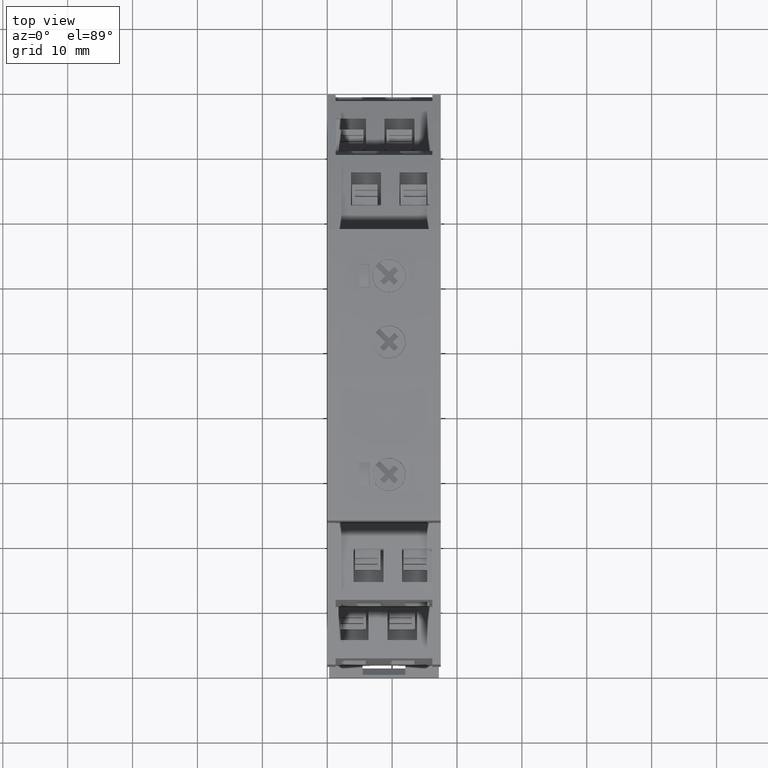
[diagram: clean part render]
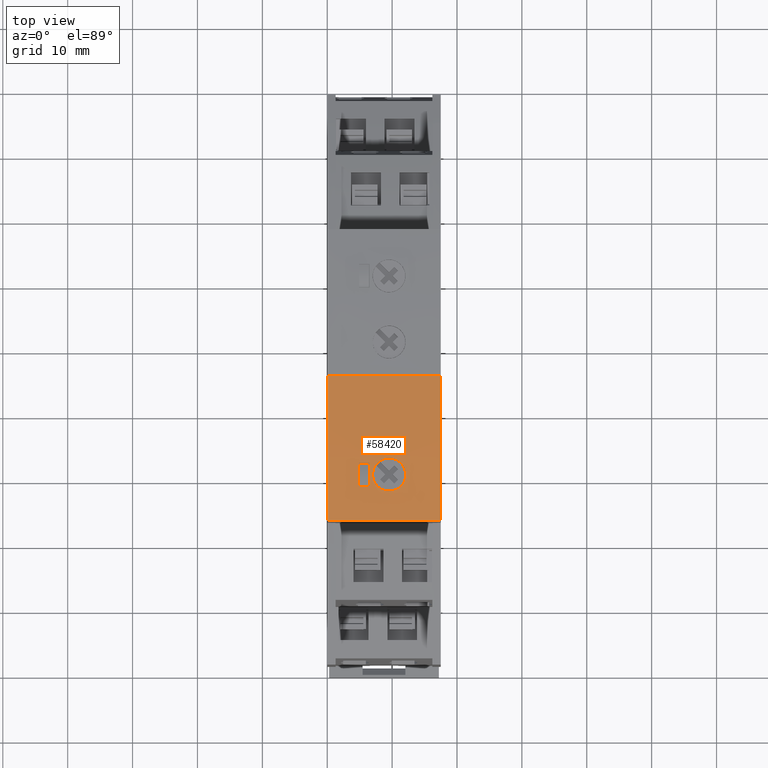
[diagram: same view with one face highlighted and labeled with its STEP entity id]
A machine part, top view. The second image highlights one B-rep face of the part: STEP entity #58420.
In plain terms, the highlighted face is a SurfaceOfExtrusion surface.
Its self-contained STEP definition (entity closure, byte-faithful):
#51370=CARTESIAN_POINT('',(-39.875644720519,59.9043663447041,0.));
#51380=VERTEX_POINT('',#51370);
#51410=CARTESIAN_POINT('',(-39.875644720519,59.9043663447041,
-3.5527136788005E-15));
#51420=DIRECTION('',(1.35525271560688E-20,-2.95822839457879E-31,1.));
#51430=VECTOR('',#51420,1.);
#51440=LINE('',#51410,#51430);
#51450=CARTESIAN_POINT('',(-39.875644720519,59.9043663447041,17.5));
#51460=VERTEX_POINT('',#51450);
#51470=EDGE_CURVE('',#51380,#51460,#51440,.T.);
#52220=CARTESIAN_POINT('',(-17.4845967167556,61.1580974394406,0.));
#52230=VERTEX_POINT('',#52220);
#52260=CARTESIAN_POINT('',(154.280844406757,61.158091567358,0.));
#52270=CARTESIAN_POINT('',(144.771787865585,61.1580918924406,0.));
#52280=CARTESIAN_POINT('',(135.262731324412,61.1580922175233,0.));
#52290=CARTESIAN_POINT('',(116.250572891361,61.158092867485,0.));
#52300=CARTESIAN_POINT('',(106.747470999481,61.1580931923641,0.));
#52310=CARTESIAN_POINT('',(59.0013804994831,61.1580948246423,0.));
#52320=CARTESIAN_POINT('',(20.7583918913638,61.1580961320414,0.));
#52330=CARTESIAN_POINT('',(-24.5764013397725,61.1580976818854,0.));
#52340=CARTESIAN_POINT('',(-31.6631882343078,60.7809522745125,0.));
#52350=CARTESIAN_POINT('',(-76.7419121579807,55.9693133706651,0.));
#52360=CARTESIAN_POINT('',(-114.768891233554,51.9103676865408,0.));
#52370=CARTESIAN_POINT('',(-162.245295418095,46.8428038003955,0.));
#52380=CARTESIAN_POINT('',(-171.694720527062,45.8341855983744,0.));
#52390=CARTESIAN_POINT('',(-190.599491760387,43.8163171935673,0.));
#52400=CARTESIAN_POINT('',(-200.054837884744,42.8070669907813,0.));
#52410=CARTESIAN_POINT('',(-209.510184009101,41.7978167879953,0.));
#52420=B_SPLINE_CURVE_WITH_KNOTS('',3,(#52260,#52270,#52280,#52290,
#52300,#52310,#52320,#52330,#52340,#52350,#52360,#52370,#52380,#52390,
#52400,#52410),.UNSPECIFIED.,.F.,.F.,(4,2,2,2,2,2,2,4),(
-8.07342419662033,-6.73257274249117,-5.3925609405535,0.,1.,
6.39256310242424,7.73257544157093,9.07342743324572),.UNSPECIFIED.);
#52430=EDGE_CURVE('',#52230,#51380,#52420,.T.);
#53190=CARTESIAN_POINT('',(166.810168798671,61.1580911390225,
-3.5527136788005E-15));
#53200=CARTESIAN_POINT('',(162.6337273347,61.158091281801,
-3.5527136788005E-15));
#53210=CARTESIAN_POINT('',(158.457285870729,61.1580914245795,
-3.5527136788005E-15));
#53220=CARTESIAN_POINT('',(144.771787865585,61.1580918924406,
-3.5527136788005E-15));
#53230=CARTESIAN_POINT('',(135.262731324412,61.1580922175233,
-3.5527136788005E-15));
#53240=CARTESIAN_POINT('',(116.250572891361,61.158092867485,
-3.5527136788005E-15));
#53250=CARTESIAN_POINT('',(106.747470999481,61.1580931923641,
-3.5527136788005E-15));
#53260=CARTESIAN_POINT('',(59.001380499483,61.1580948246423,
-3.5527136788005E-15));
#53270=CARTESIAN_POINT('',(20.7583918913639,61.1580961320414,
-3.5527136788005E-15));
#53280=CARTESIAN_POINT('',(-24.5764013397725,61.1580976818854,
-3.5527136788005E-15));
#53290=CARTESIAN_POINT('',(-31.6631882343078,60.7809522745125,
-3.5527136788005E-15));
#53300=CARTESIAN_POINT('',(-76.7419121579807,55.9693133706651,
-3.5527136788005E-15));
#53310=CARTESIAN_POINT('',(-114.768891233554,51.9103676865408,
-3.5527136788005E-15));
#53320=CARTESIAN_POINT('',(-162.245295418094,46.8428038003955,
-3.5527136788005E-15));
#53330=CARTESIAN_POINT('',(-171.694720527062,45.8341855983744,
-3.5527136788005E-15));
#53340=CARTESIAN_POINT('',(-190.599491760387,43.8163171935673,
-3.5527136788005E-15));
#53350=CARTESIAN_POINT('',(-200.054837884744,42.8070669907813,
-3.5527136788005E-15));
#53360=CARTESIAN_POINT('',(-213.663035497467,41.3545473241756,
-3.5527136788005E-15));
#53370=CARTESIAN_POINT('',(-217.815886985833,40.9112778603559,
-3.5527136788005E-15));
#53380=CARTESIAN_POINT('',(-221.968738474199,40.4680083965362,
-3.5527136788005E-15));
#53390=B_SPLINE_CURVE_WITH_KNOTS('',3,(#53190,#53200,#53210,#53220,
#53230,#53240,#53250,#53260,#53270,#53280,#53290,#53300,#53310,#53320,
#53330,#53340,#53350,#53360,#53370,#53380),.UNSPECIFIED.,.F.,.F.,(4,2,2,
2,2,2,2,2,2,4),(-8.66233515595729,-8.07342419662033,-6.73257274249117,
-5.3925609405535,0.,1.,6.39256310242424,7.73257544157093,
9.07342743324572,9.66233862867633),.UNSPECIFIED.);
#53400=DIRECTION('',(1.35525271560688E-20,-2.95822839457879E-31,1.));
#53410=VECTOR('',#53400,1.);
#53420=SURFACE_OF_LINEAR_EXTRUSION('',#53390,#53410);
#53430=CARTESIAN_POINT('',(-30.9844182525278,59.953195118063,
6.50042179353598));
#53440=DIRECTION('',(0.999999999536252,-5.02043146649139E-18,
-3.04548102665637E-5));
#53450=DIRECTION('',(5.02021973198065E-18,1.,-6.95249246343215E-18));
#53460=AXIS2_PLACEMENT_3D('',#53430,#53440,#53450);
#53470=PLANE('',#53460);
#53480=CARTESIAN_POINT('',(-30.9844182525278,60.7020337093781,
6.50042179353598));
#53490=CARTESIAN_POINT('',(-30.9844223885881,60.702033429602,
6.36461203995883));
#53500=CARTESIAN_POINT('',(-30.9844265246483,60.7020331498258,
6.22880228638168));
#53510=CARTESIAN_POINT('',(-30.9844306607086,60.7020328700495,
6.09299253280454));
#53520=CARTESIAN_POINT('',(-30.9844347967689,60.7020325902732,
5.9571827792274));
#53530=CARTESIAN_POINT('',(-30.9844389328292,60.7020323104967,
5.82137302565025));
#53540=CARTESIAN_POINT('',(-30.9844430688895,60.7020320307202,
5.68556327207311));
#53550=CARTESIAN_POINT('',(-30.9844472049497,60.7020317509436,
5.54975351849596));
#53560=CARTESIAN_POINT('',(-30.98445134101,60.7020314711669,
5.41394376491881));
#53570=CARTESIAN_POINT('',(-30.9844554770703,60.7020311913901,
5.27813401134167));
#53580=CARTESIAN_POINT('',(-30.9844575451004,60.7020310515016,
5.2102291345531));
#53590=CARTESIAN_POINT('',(-30.9844596131306,60.7020309116132,
5.14232425776453));
#53600=CARTESIAN_POINT('',(-30.9844616811607,60.7020307717247,
5.07441938097595));
#53610=CARTESIAN_POINT('',(-30.9844637491909,60.7020306318362,
5.00651450418738));
#53620=CARTESIAN_POINT('',(-30.984465817221,60.7020304919477,
4.93860962739881));
#53630=CARTESIAN_POINT('',(-30.9844678852511,60.7020303520592,
4.87070475061024));
#53640=B_SPLINE_CURVE_WITH_KNOTS('',3,(#53480,#53490,#53500,#53510,
#53520,#53530,#53540,#53550,#53560,#53570,#53580,#53590,#53600,#53610,
#53620,#53630),.UNSPECIFIED.,.F.,.F.,(4,3,3,3,3,4),(0.,0.407429260921244
,0.814858521842488,1.22228778276373,1.42600241322436,1.62971704368498),
.UNSPECIFIED.);
#53650=SURFACE_CURVE('',#53640,(#53470,#53420),.CURVE_3D.);
#53660=CARTESIAN_POINT('',(-30.9844182525278,60.7020337093781,
6.50042179353598));
#53670=VERTEX_POINT('',#53660);
#53680=CARTESIAN_POINT('',(-30.9844678852511,60.7020303520592,
4.87070475061024));
#53690=VERTEX_POINT('',#53680);
#53700=EDGE_CURVE('',#53670,#53690,#53650,.T.);
#53710=ORIENTED_EDGE('',*,*,#53700,.F.);
#53720=CARTESIAN_POINT('',(125.75367478324,61.1580925426059,
4.86593132021152));
#53730=CARTESIAN_POINT('',(116.250572891361,61.158092867485,
4.86622073537671));
#53740=CARTESIAN_POINT('',(106.747470999481,61.1580931923641,
4.86651015054191));
#53750=CARTESIAN_POINT('',(59.0013804994831,61.1580948246423,
4.86796424866973));
#53760=CARTESIAN_POINT('',(20.7583918913638,61.1580961320414,
4.86912893163236));
#53770=CARTESIAN_POINT('',(-24.5764013397726,61.1580976818854,
4.87050959415933));
#53780=CARTESIAN_POINT('',(-31.6631882343079,60.7809522745125,
4.8707254209097));
#53790=CARTESIAN_POINT('',(-76.7419121579808,55.9693133706651,
4.87209828489449));
#53800=CARTESIAN_POINT('',(-114.768891233554,51.9103676865408,
4.87325638932779));
#53810=CARTESIAN_POINT('',(-162.245295418095,46.8428038003955,
4.87470227421003));
#53820=CARTESIAN_POINT('',(-171.694720527062,45.8341855983744,
4.87499005465899));
#53830=CARTESIAN_POINT('',(-181.14414563603,44.8255673963532,
4.87527783510794));
#53840=B_SPLINE_CURVE_WITH_KNOTS('',3,(#53720,#53730,#53740,#53750,
#53760,#53770,#53780,#53790,#53800,#53810,#53820,#53830),.UNSPECIFIED.,
.F.,.F.,(4,2,2,2,2,4),(-6.73257274249117,-5.3925609405535,0.,1.,
6.39256310242424,7.73257544157093),.UNSPECIFIED.);
#53850=CARTESIAN_POINT('',(-34.5844678835817,60.4258539372222,
4.87081438792938));
#53860=VERTEX_POINT('',#53850);
#53870=EDGE_CURVE('',#53690,#53860,#53840,.T.);
#53880=ORIENTED_EDGE('',*,*,#53870,.F.);
#53890=CARTESIAN_POINT('',(-34.5844182508583,60.3746497202046,
6.50053143085294));
#53900=DIRECTION('',(-0.999999999536252,5.02043146649139E-18,
3.04548102665637E-5));
#53910=DIRECTION('',(-5.02021973198065E-18,-1.,6.95249246343215E-18));
#53920=AXIS2_PLACEMENT_3D('',#53890,#53900,#53910);
#53930=PLANE('',#53920);
#53940=CARTESIAN_POINT('',(-34.5844678835817,60.4258539372222,
4.87081438792939));
#53950=CARTESIAN_POINT('',(-34.5844637475214,60.4258542920984,
5.00662414150635));
#53960=CARTESIAN_POINT('',(-34.5844596114611,60.4258546469745,
5.14243389508331));
#53970=CARTESIAN_POINT('',(-34.5844554754008,60.4258550018504,
5.27824364866027));
#53980=CARTESIAN_POINT('',(-34.5844513393406,60.4258553567263,
5.41405340223724));
#53990=CARTESIAN_POINT('',(-34.5844472032803,60.4258557116021,
5.5498631558142));
#54000=CARTESIAN_POINT('',(-34.58444306722,60.4258560664778,
5.68567290939116));
#54010=CARTESIAN_POINT('',(-34.5844389311597,60.4258564213535,
5.82148266296812));
#54020=CARTESIAN_POINT('',(-34.5844347950994,60.425856776229,
5.95729241654509));
#54030=CARTESIAN_POINT('',(-34.5844306590392,60.4258571311044,
6.09310217012205));
#54040=CARTESIAN_POINT('',(-34.5844265229789,60.4258574859799,
6.22891192369901));
#54050=CARTESIAN_POINT('',(-34.5844223869186,60.4258578408551,
6.36472167727598));
#54060=CARTESIAN_POINT('',(-34.5844182508583,60.4258581957303,
6.50053143085294));
#54070=B_SPLINE_CURVE_WITH_KNOTS('',3,(#53940,#53950,#53960,#53970,
#53980,#53990,#54000,#54010,#54020,#54030,#54040,#54050,#54060),
.UNSPECIFIED.,.F.,.F.,(4,3,3,3,4),(0.,0.407429260921223,
0.814858521842447,1.22228778276367,1.62971704368489),.UNSPECIFIED.);
#54080=SURFACE_CURVE('',#54070,(#53930,#53420),.CURVE_3D.);
#54090=CARTESIAN_POINT('',(-34.5844182508583,60.4258581957303,
6.50053143085293));
#54100=VERTEX_POINT('',#54090);
#54110=EDGE_CURVE('',#53860,#54100,#54080,.T.);
#54120=ORIENTED_EDGE('',*,*,#54110,.F.);
#54130=CARTESIAN_POINT('',(125.75367478324,61.1580925426059,
6.49564836464882));
#54140=CARTESIAN_POINT('',(116.250572891361,61.158092867485,
6.49593777981401));
#54150=CARTESIAN_POINT('',(106.747470999482,61.1580931923641,
6.49622719497921));
#54160=CARTESIAN_POINT('',(59.0013804994831,61.1580948246423,
6.49768129310703));
#54170=CARTESIAN_POINT('',(20.7583918913638,61.1580961320414,
6.49884597606966));
#54180=CARTESIAN_POINT('',(-24.5764013397726,61.1580976818854,
6.50022663859662));
#54190=CARTESIAN_POINT('',(-31.6631882343079,60.7809522745125,
6.500442465347));
#54200=CARTESIAN_POINT('',(-76.7419121579808,55.9693133706651,
6.50181532933179));
#54210=CARTESIAN_POINT('',(-114.768891233554,51.9103676865408,
6.50297343376508));
#54220=CARTESIAN_POINT('',(-162.245295418095,46.8428038003955,
6.50441931864733));
#54230=CARTESIAN_POINT('',(-171.694720527062,45.8341855983744,
6.50470709909629));
#54240=CARTESIAN_POINT('',(-181.14414563603,44.8255673963532,
6.50499487954524));
#54250=B_SPLINE_CURVE_WITH_KNOTS('',3,(#54130,#54140,#54150,#54160,
#54170,#54180,#54190,#54200,#54210,#54220,#54230,#54240),.UNSPECIFIED.,
.F.,.F.,(4,2,2,2,2,4),(-6.73257274249117,-5.3925609405535,0.,1.,
6.39256310242424,7.73257544157093),.UNSPECIFIED.);
#54260=EDGE_CURVE('',#53670,#54100,#54250,.T.);
#54270=ORIENTED_EDGE('',*,*,#54260,.T.);
#54280=EDGE_LOOP('',(#54270,#54120,#53880,#53710));
#54290=FACE_BOUND('',#54280,.T.);
#54300=CARTESIAN_POINT('',(-32.7843253645217,59.45,9.55047661078003));
#54310=DIRECTION('',(-5.02021470133193E-18,-1.,7.11767649097219E-18));
#54320=DIRECTION('',(-0.999999999536252,5.02043146649091E-18,
3.04548102664226E-5));
#54330=AXIS2_PLACEMENT_3D('',#54300,#54310,#54320);
#54340=CYLINDRICAL_SURFACE('',#54330,2.55000000000001);
#54350=CARTESIAN_POINT('',(-30.2343253657043,60.7513566432208,
9.55039895101386));
#54360=CARTESIAN_POINT('',(-30.23432679397,60.751356551999,
9.50350107969504));
#54370=CARTESIAN_POINT('',(-30.2356229636317,60.7512737795896,
9.45664251726598));
#54380=CARTESIAN_POINT('',(-30.2382015500524,60.7511090379041,
9.4099293895618));
#54390=CARTESIAN_POINT('',(-30.2407801463115,60.75094429559,
9.36321608362491));
#54400=CARTESIAN_POINT('',(-30.2446410352253,60.7506975913234,
9.31664915258704));
#54410=CARTESIAN_POINT('',(-30.2497608469037,60.7503701972186,
9.27032896036746));
#54420=CARTESIAN_POINT('',(-30.2523207548254,60.7502065000331,
9.24716884541674));
#54430=CARTESIAN_POINT('',(-30.2551952244311,60.7500226389672,
9.22407037302433));
#54440=CARTESIAN_POINT('',(-30.2583804345481,60.749818817788,
9.20104534323147));
#54450=CARTESIAN_POINT('',(-30.2615643513714,60.7496150793664,
9.17802966231135));
#54460=CARTESIAN_POINT('',(-30.2650656146743,60.749390958309,
9.15503678824762));
#54470=CARTESIAN_POINT('',(-30.2688868198056,60.7491462379517,
9.13206422119689));
#54480=CARTESIAN_POINT('',(-30.2765288221361,60.7486568233623,
9.08612153952826));
#54490=CARTESIAN_POINT('',(-30.2854482406375,60.7480851710369,
9.04028086604622));
#54500=CARTESIAN_POINT('',(-30.2956408657822,60.7474310359555,
8.99464438273489));
#54510=CARTESIAN_POINT('',(-30.3058334495371,60.7467769035304,
8.94900808474244));
#54520=CARTESIAN_POINT('',(-30.3172991105548,60.746040295774,
8.90357690834521));
#54530=CARTESIAN_POINT('',(-30.3300215180631,60.7452216058566,
8.85845592520881));
#54540=CARTESIAN_POINT('',(-30.3427438986354,60.7444029176725,
8.81333503760262));
#54550=CARTESIAN_POINT('',(-30.3567227991718,60.743502160553,
8.76852529411277));
#54560=CARTESIAN_POINT('',(-30.371929592786,60.7425203939723,
8.7241312589376));
#54570=CARTESIAN_POINT('',(-30.3871363822292,60.7415386276608,
8.67973723593898));
#54580=CARTESIAN_POINT('',(-30.4035707483341,60.7404758705663,
8.63575986101496));
#54590=CARTESIAN_POINT('',(-30.4211923389285,60.7393338351015,
8.59230005953762));
#54600=CARTESIAN_POINT('',(-30.4388139569156,60.7381917978614,
8.54884019050245));
#54610=CARTESIAN_POINT('',(-30.4576224027377,60.7369705059345,
8.50589879509982));
#54620=CARTESIAN_POINT('',(-30.4775668939001,60.7356722693272,
8.46357028629044));
#54630=CARTESIAN_POINT('',(-30.4975114540046,60.7343740282322,
8.42124163116407));
#54640=CARTESIAN_POINT('',(-30.5185915950395,60.732998870562,
8.37952669524015));
#54650=CARTESIAN_POINT('',(-30.5407481347385,60.7315496031268,
8.33851076390217));
#54660=CARTESIAN_POINT('',(-30.5518264106599,60.7308249690121,
8.31800278699299));
#54670=CARTESIAN_POINT('',(-30.5631736377712,60.7300818165447,
8.29766946729113));
#54680=CARTESIAN_POINT('',(-30.5747818223497,60.7293205331374,
8.27752047043355));
#54690=CARTESIAN_POINT('',(-30.586392094398,60.7285591128306,
8.25736785023382));
#54700=CARTESIAN_POINT('',(-30.5982485615493,60.7277805331312,
8.23742320359935));
#54710=CARTESIAN_POINT('',(-30.6104066703706,60.7269810054571,
8.21759345340268));
#54720=CARTESIAN_POINT('',(-30.6347169030799,60.7253823436833,
8.17794371437388));
#54730=CARTESIAN_POINT('',(-30.6601710530895,60.7237040008182,
8.13886419298851));
#54740=CARTESIAN_POINT('',(-30.6867281214381,60.7219473861726,
8.1004470228722));
#54750=CARTESIAN_POINT('',(-30.7132850729217,60.7201907792571,
8.06203002181158));
#54760=CARTESIAN_POINT('',(-30.7409444882711,60.7183559279697,
8.0242761754684));
#54770=CARTESIAN_POINT('',(-30.7696530229785,60.7164450246377,
7.98727625374941));
#54780=CARTESIAN_POINT('',(-30.7983614874905,60.714534125978,
7.95027642249911));
#54790=CARTESIAN_POINT('',(-30.828118517609,60.7125472092784,
7.91403130472599));
#54800=CARTESIAN_POINT('',(-30.8588594514416,60.7104872237718,
7.87862703095341));
#54810=CARTESIAN_POINT('',(-30.8896003666716,60.7084272395117,
7.8432227786053));
#54820=CARTESIAN_POINT('',(-30.9213245507496,60.7062942261135,
7.80866011874864));
#54830=CARTESIAN_POINT('',(-30.9539576386816,60.7040918254014,
7.77501780016145));
#54840=CARTESIAN_POINT('',(-30.9865907658975,60.7018894220381,
7.74137544107551));
#54850=CARTESIAN_POINT('',(-31.0201321003732,60.6996176756826,
7.70865410874344));
#54860=CARTESIAN_POINT('',(-31.0544997507919,60.6972808162576,
7.6769229429914));
#54870=CARTESIAN_POINT('',(-31.0888675066677,60.694943949662,
7.64519167987224));
#54880=CARTESIAN_POINT('',(-31.1240608416594,60.6925420178064,
7.61445118494485));
#54890=CARTESIAN_POINT('',(-31.1599930825586,60.6900796898233,
7.5847592766314));
#54900=CARTESIAN_POINT('',(-31.1883326031907,60.6881376680364,
7.56134146501704));
#54910=CARTESIAN_POINT('',(-31.2171313911601,60.6861581042374,
7.53857588413831));
#54920=CARTESIAN_POINT('',(-31.2463461036527,60.6841434066893,
7.51648551120837));
#54930=CARTESIAN_POINT('',(-31.2755409934972,60.6821300761455,
7.49441012694844));
#54940=CARTESIAN_POINT('',(-31.3052302902679,60.6800762195057,
7.47294784248723));
#54950=CARTESIAN_POINT('',(-31.3354433349697,60.6779791210153,
7.45208654588708));
#54960=CARTESIAN_POINT('',(-31.365651083338,60.6758823901453,
7.43122890626316));
#54970=CARTESIAN_POINT('',(-31.3963603547462,60.6737439521133,
7.41098866603184));
#54980=CARTESIAN_POINT('',(-31.4275336925097,60.6715657431323,
7.39139894687835));
#54990=CARTESIAN_POINT('',(-31.4587069677101,60.6693875385229,
7.37180926704038));
#55000=CARTESIAN_POINT('',(-31.4903440838764,60.6671695777396,
7.3528702771164));
#55010=CARTESIAN_POINT('',(-31.5224035513387,60.6649141338849,
7.33461259477782));
#55020=CARTESIAN_POINT('',(-31.5544629787363,60.6626586928489,
7.31635493525583));
#55030=CARTESIAN_POINT('',(-31.5869445121271,60.6603657851075,
7.29877873948187));
#55040=CARTESIAN_POINT('',(-31.6198033045762,60.6580379876868,
7.28191134350165));
#55050=CARTESIAN_POINT('',(-31.6526620796352,60.655710191498,
7.26504395644824));
#55060=CARTESIAN_POINT('',(-31.6858978535206,60.6533475232907,
7.24888550954035));
#55070=CARTESIAN_POINT('',(-31.7194631768185,60.6509528234814,
7.23345945046312));
#55080=CARTESIAN_POINT('',(-31.7530285059801,60.6485581232537,
7.21803338869107));
#55090=CARTESIAN_POINT('',(-31.7869231143287,60.6461314100775,
7.20333983667089));
#55100=CARTESIAN_POINT('',(-31.8210977804131,60.6436757393035,
7.18939791213065));
#55110=CARTESIAN_POINT('',(-31.8552724766741,60.641220066361,
7.17545597527949));
#55120=CARTESIAN_POINT('',(-31.8897269554863,60.6387354551472,
7.16226576717496));
#55130=CARTESIAN_POINT('',(-31.924411129511,60.6362251189999,
7.14984179714669));
#55140=CARTESIAN_POINT('',(-31.9590953596035,60.6337147787947,
7.13741780703473));
#55150=CARTESIAN_POINT('',(-31.9940090100696,60.631178733305,
7.12576013370932));
#55160=CARTESIAN_POINT('',(-32.0291021114681,60.6286202877617,
7.11487856552546));
#55170=CARTESIAN_POINT('',(-32.0641952969162,60.6260618360908,
7.10399697127975));
#55180=CARTESIAN_POINT('',(-32.0994676645684,60.6234810039407,
7.09389153672789));
#55190=CARTESIAN_POINT('',(-32.1348704262716,60.620881112584,
7.08456739039445));
#55200=CARTESIAN_POINT('',(-32.2056111977896,60.6156860850891,
7.06593615165372));
#55210=CARTESIAN_POINT('',(-32.2771591552038,60.6103938718173,
7.05034845285476));
#55220=CARTESIAN_POINT('',(-32.3492869025012,60.6050190374068,
7.0378601385418));
#55230=CARTESIAN_POINT('',(-32.4214174566337,60.5996439938359,
7.02537133824887));
#55240=CARTESIAN_POINT('',(-32.4939922900835,60.5941964394762,
7.01600394368824));
#55250=CARTESIAN_POINT('',(-32.5668353585609,60.5886884074024,
7.00976842263499));
#55260=CARTESIAN_POINT('',(-32.6396819599926,60.5831801081842,
7.00353259915336));
#55270=CARTESIAN_POINT('',(-32.7127783807042,60.5776126918923,
7.00043264627143));
#55280=CARTESIAN_POINT('',(-32.7858755068135,60.5720047076499,
7.00047708194498));
#55290=CARTESIAN_POINT('',(-32.8589737635138,60.5663966366689,
7.00052151830581));
#55300=CARTESIAN_POINT('',(-32.9320563007208,60.5607492639408,
7.00370985735554));
#55310=CARTESIAN_POINT('',(-33.0048940182542,60.5550807139842,
7.01003384051523));
#55320=CARTESIAN_POINT('',(-33.0777173692862,60.5494132820916,
7.01635657633334));
#55330=CARTESIAN_POINT('',(-33.1502754579754,60.5437262701244,
7.02581284256739));
#55340=CARTESIAN_POINT('',(-33.2223093611373,60.5380412594089,
7.03837191178584));
#55350=CARTESIAN_POINT('',(-33.294299371818,60.5323597127461,
7.05092332837567));
#55360=CARTESIAN_POINT('',(-33.3658314675884,60.5266749899229,
7.06658494622497));
#55370=CARTESIAN_POINT('',(-33.4366545909608,60.521008923999,
7.08532619339501));
#55380=CARTESIAN_POINT('',(-33.4720600811458,60.5181763767757,
7.09469521033663));
#55390=CARTESIAN_POINT('',(-33.5072751842196,60.5153495621401,
7.10483039505264));
#55400=CARTESIAN_POINT('',(-33.5422510425602,60.5125327441748,
7.11571816966723));
#55410=CARTESIAN_POINT('',(-33.577226908906,60.5097159255647,
7.12660594677377));
#55420=CARTESIAN_POINT('',(-33.6119632668235,60.5069091253574,
7.13824622890896));
#55430=CARTESIAN_POINT('',(-33.6464127806101,60.5041165822377,
7.15062134701472));
#55440=CARTESIAN_POINT('',(-33.6808629595089,60.5013239852028,
7.16299670404521));
#55450=CARTESIAN_POINT('',(-33.7150233383082,60.4985458865215,
7.17610572865783));
#55460=CARTESIAN_POINT('',(-33.7488565934856,60.4957857988929,
7.18993016803558));
#55470=CARTESIAN_POINT('',(-33.7827011182326,60.4930247919026,
7.20375921221653));
#55480=CARTESIAN_POINT('',(-33.8163181518833,60.4902736603939,
7.21834503856603));
#55490=CARTESIAN_POINT('',(-33.8496605757357,60.4875366425655,
7.23367690261626));
#55500=CARTESIAN_POINT('',(-33.8830029132996,60.4847996318204,
7.24900872698838));
#55510=CARTESIAN_POINT('',(-33.9160703863746,60.4820767558372,
7.26508650444111));
#55520=CARTESIAN_POINT('',(-33.9488150906717,60.4793724068626,
7.28189474589362));
#55530=CARTESIAN_POINT('',(-33.9815597360034,60.4766680627579,
7.2987029570785));
#55540=CARTESIAN_POINT('',(-34.0139813538578,60.4739822674163,
7.31624152256888));
#55550=CARTESIAN_POINT('',(-34.0460323327254,60.4713194746553,
7.33449025559033));
#55560=CARTESIAN_POINT('',(-34.0780832775198,60.468656684725,
7.35273896921164));
#55570=CARTESIAN_POINT('',(-34.1097633261602,60.4660169193142,
7.37169771790733));
#55580=CARTESIAN_POINT('',(-34.1410261348266,60.4634046061602,
7.39134182576665));
#55590=CARTESIAN_POINT('',(-34.1722889323748,60.4607922939353,
7.4109859266398));
#55600=CARTESIAN_POINT('',(-34.2031342393095,60.458207455636,
7.43131523398368));
#55610=CARTESIAN_POINT('',(-34.2335178541411,60.4556544104359,
7.45230094415174));
#55620=CARTESIAN_POINT('',(-34.2639014793681,60.4531013643624,
7.47328666149976));
#55630=CARTESIAN_POINT('',(-34.2938231730242,60.4505801323523,
7.49492861152053));
#55640=CARTESIAN_POINT('',(-34.3232416532109,60.4480948480904,
7.51719437350764));
#55650=CARTESIAN_POINT('',(-34.3526601643182,60.4456095612163,
7.53946015889749));
#55660=CARTESIAN_POINT('',(-34.3815752381223,60.4431602419235,
7.56234957175968));
#55670=CARTESIAN_POINT('',(-34.4099491929632,60.4407507676294,
7.58582723534341));
#55680=CARTESIAN_POINT('',(-34.4459253291231,60.4376957273375,
7.61559522597218));
#55690=CARTESIAN_POINT('',(-34.4810306942398,60.4347048149579,
7.6463085825633));
#55700=CARTESIAN_POINT('',(-34.515198419378,60.43178516828,
7.67789057324461));
#55710=CARTESIAN_POINT('',(-34.5322822938235,60.4303253439262,
7.69368157956295));
#55720=CARTESIAN_POINT('',(-34.5491318863751,60.4288833262367,
7.70968963216916));
#55730=CARTESIAN_POINT('',(-34.5657399317576,60.4274599191464,
7.7259048419423));
#55740=CARTESIAN_POINT('',(-34.5823442427948,60.4260368321114,
7.74211640569968));
#55750=CARTESIAN_POINT('',(-34.5987147882311,60.4246316939751,
7.75854153889998));
#55760=CARTESIAN_POINT('',(-34.6148966914949,60.4232407890913,
7.77522772207072));
#55770=CARTESIAN_POINT('',(-34.6472518066216,60.4204597263873,
7.80859112615928));
#55780=CARTESIAN_POINT('',(-34.6787753277523,60.4177421982419,
7.84292333773396));
#55790=CARTESIAN_POINT('',(-34.7093872681714,60.4150963469984,
7.8781618476099));
#55800=CARTESIAN_POINT('',(-34.7399990800811,60.4124505068622,
7.913400209554));
#55810=CARTESIAN_POINT('',(-34.7696986475763,60.4098764032051,
7.94954422616402));
#55820=CARTESIAN_POINT('',(-34.7984105881496,60.4073818502958,
7.98651986202902));
#55830=CARTESIAN_POINT('',(-34.8271224636957,60.4048873030363,
8.02349541415097));
#55840=CARTESIAN_POINT('',(-34.8548460876073,60.4024723633498,
8.06130185069715));
#55850=CARTESIAN_POINT('',(-34.88151352713,60.4001442355849,
8.09985542983179));
#55860=CARTESIAN_POINT('',(-34.9081809550791,60.3978161088305,
8.1384089922342));
#55870=CARTESIAN_POINT('',(-34.9337916330816,60.3955748460344,
8.17770889427626));
#55880=CARTESIAN_POINT('',(-34.9582872799743,60.3934268108012,
8.21766394946492));
#55890=CARTESIAN_POINT('',(-34.9827829606757,60.3912787726033,
8.25761905979943));
#55900=CARTESIAN_POINT('',(-35.0061631212132,60.3892240074277,
8.29822847619165));
#55910=CARTESIAN_POINT('',(-35.0283807081614,60.3872678606782,
8.33939626056282));
#55920=CARTESIAN_POINT('',(-35.0505983676378,60.385311707543,
8.38056417932412));
#55930=CARTESIAN_POINT('',(-35.0716530564547,60.3834542101078,
8.42228960102719));
#55940=CARTESIAN_POINT('',(-35.0915098905813,60.3816995757011,
8.46447497049053));
#55950=CARTESIAN_POINT('',(-35.1113704443716,60.379944612609,
8.50666824229068));
#55960=CARTESIAN_POINT('',(-35.1300185076551,60.3782938104219,
8.5492867352096));
#55970=CARTESIAN_POINT('',(-35.1474713103258,60.3767466663001,
8.59233192503071));
#55980=CARTESIAN_POINT('',(-35.1649393204136,60.3751981740817,
8.63541462207441));
#55990=CARTESIAN_POINT('',(-35.1812739475745,60.373747843851,
8.67908774509026));
#56000=CARTESIAN_POINT('',(-35.1964238996923,60.3724010897479,
8.72326402829104));
#56010=CARTESIAN_POINT('',(-35.2115737813031,60.3710543419124,
8.76744010589791));
#56020=CARTESIAN_POINT('',(-35.2255386025414,60.3698112062509,
8.81211849159794));
#56030=CARTESIAN_POINT('',(-35.2382754197999,60.3686762710267,
8.85720240370168));
#56040=CARTESIAN_POINT('',(-35.2510122032959,60.3675413388109,
8.90228619629775));
#56050=CARTESIAN_POINT('',(-35.2625206682062,60.36651463669,
8.94777458664994));
#56060=CARTESIAN_POINT('',(-35.2727683396834,60.3655997127035,
8.99356408679769));
#56070=CARTESIAN_POINT('',(-35.2830160032748,60.364684789421,
9.03935355170949));
#56080=CARTESIAN_POINT('',(-35.2920026402573,60.3638816663868,
9.08544315180678));
#56090=CARTESIAN_POINT('',(-35.2997075715287,60.3631927110729,
9.1317256672911));
#56100=CARTESIAN_POINT('',(-35.307412511096,60.3625037550171,
9.17800823260831));
#56110=CARTESIAN_POINT('',(-35.3138356006064,60.3619289804491,
9.22448272269621));
#56120=CARTESIAN_POINT('',(-35.318968518195,60.3614695078462,
9.27104131677232));
#56130=CARTESIAN_POINT('',(-35.3241014510639,60.3610100338756,
9.31760004944971));
#56140=CARTESIAN_POINT('',(-35.3279441611034,60.3606658668021,
9.36424191033384));
#56150=CARTESIAN_POINT('',(-35.3305004755422,60.3604368894211,
9.41086176909));
#56160=CARTESIAN_POINT('',(-35.333056802808,60.3602079108912,
9.45748186177615));
#56170=CARTESIAN_POINT('',(-35.334326778734,60.3600941179883,
9.50407902444944));
#56180=CARTESIAN_POINT('',(-35.3343253633392,60.3600942447972,
9.5505542705462));
#56190=B_SPLINE_CURVE_WITH_KNOTS('',3,(#54350,#54360,#54370,#54380,
#54390,#54400,#54410,#54420,#54430,#54440,#54450,#54460,#54470,#54480,
#54490,#54500,#54510,#54520,#54530,#54540,#54550,#54560,#54570,#54580,
#54590,#54600,#54610,#54620,#54630,#54640,#54650,#54660,#54670,#54680,
#54690,#54700,#54710,#54720,#54730,#54740,#54750,#54760,#54770,#54780,
#54790,#54800,#54810,#54820,#54830,#54840,#54850,#54860,#54870,#54880,
#54890,#54900,#54910,#54920,#54930,#54940,#54950,#54960,#54970,#54980,
#54990,#55000,#55010,#55020,#55030,#55040,#55050,#55060,#55070,#55080,
#55090,#55100,#55110,#55120,#55130,#55140,#55150,#55160,#55170,#55180,
#55190,#55200,#55210,#55220,#55230,#55240,#55250,#55260,#55270,#55280,
#55290,#55300,#55310,#55320,#55330,#55340,#55350,#55360,#55370,#55380,
#55390,#55400,#55410,#55420,#55430,#55440,#55450,#55460,#55470,#55480,
#55490,#55500,#55510,#55520,#55530,#55540,#55550,#55560,#55570,#55580,
#55590,#55600,#55610,#55620,#55630,#55640,#55650,#55660,#55670,#55680,
#55690,#55700,#55710,#55720,#55730,#55740,#55750,#55760,#55770,#55780,
#55790,#55800,#55810,#55820,#55830,#55840,#55850,#55860,#55870,#55880,
#55890,#55900,#55910,#55920,#55930,#55940,#55950,#55960,#55970,#55980,
#55990,#56000,#56010,#56020,#56030,#56040,#56050,#56060,#56070,#56080,
#56090,#56100,#56110,#56120,#56130,#56140,#56150,#56160,#56170,#56180),
.UNSPECIFIED.,.F.,.F.,(4,3,3,3,3,3,3,3,3,3,3,3,3,3,3,3,3,3,3,3,3,3,3,3,3
,3,3,3,3,3,3,3,3,3,3,3,3,3,3,3,3,3,3,3,3,3,3,3,3,3,3,3,3,3,3,3,3,3,3,3,3
,4),(0.,0.140541109412036,0.280638930111202,0.350461037561974,
0.420243103622815,0.560271236124332,0.700767560193365,0.841521760573311,
0.982310560989115,1.12290882408697,1.26310051133091,1.33298171508189,
1.40273954198362,1.54266274846333,1.68308860988455,1.82381159735738,
1.96461099286366,2.10526202576248,2.24554670364612,2.35579768086774,
2.4659131591953,2.57639687224849,2.68717206586575,2.79813758711662,
2.90918627865261,3.02020835284089,3.13109463987604,3.24173987253029,
3.35204616913637,3.57213108479621,3.79216035406126,4.01209876672113,
4.23204533990499,4.45202821773607,4.67218366952693,4.78240162388116,
4.89258600782614,5.00263680952363,5.11284179217246,5.22340909572108,
5.33424340712537,5.4452411378349,5.55629396571304,5.66729214016175,
5.77812770947377,5.91826461784768,5.98811320966607,6.05787879469927,
6.19786143083336,6.33832887141668,6.47907138613078,6.61986633255068,
6.76048921517908,6.90072456030082,7.0403974194207,7.18026658370685,
7.32065860049344,7.46136677527599,7.60216879946409,7.74283812403576,
7.88315497115738,8.02291788012191),.UNSPECIFIED.);
#56200=SURFACE_CURVE('',#56190,(#54340,#53420),.CURVE_3D.);
#56210=CARTESIAN_POINT('',(-30.2343253657043,60.7513566432208,
9.55039895101385));
#56220=VERTEX_POINT('',#56210);
#56230=CARTESIAN_POINT('',(-35.3343253633392,60.3600942447972,
9.55055427054621));
#56240=VERTEX_POINT('',#56230);
#56250=EDGE_CURVE('',#56220,#56240,#56200,.T.);
#56260=ORIENTED_EDGE('',*,*,#56250,.F.);
#56270=CARTESIAN_POINT('',(-35.3343253633392,60.3600942447972,
9.5505542705462));
#56280=CARTESIAN_POINT('',(-35.3343239480138,60.3600943715999,
9.59702723788251));
#56290=CARTESIAN_POINT('',(-35.3330511491188,60.3602084172461,
9.64354405821876));
#56300=CARTESIAN_POINT('',(-35.3305054650452,60.3604364424951,
9.69000042845347));
#56310=CARTESIAN_POINT('',(-35.3279597822326,60.360664467631,
9.73645677567621));
#56320=CARTESIAN_POINT('',(-35.3241412568922,60.3610064682893,
9.78285172410402));
#56330=CARTESIAN_POINT('',(-35.3190599903988,60.3614613197011,
9.8290809475085));
#56340=CARTESIAN_POINT('',(-35.3165193621736,60.3616887449575,
9.85219551352494));
#56350=CARTESIAN_POINT('',(-35.313663239812,60.361944363516,
9.87526857067985));
#56360=CARTESIAN_POINT('',(-35.310493955435,60.3622279258013,
9.89828726370048));
#56370=CARTESIAN_POINT('',(-35.3073251737158,60.3625114431127,
9.92130230588871));
#56380=CARTESIAN_POINT('',(-35.3038378903299,60.3628233819933,
9.94430269528862));
#56390=CARTESIAN_POINT('',(-35.3000313557675,60.3631637588464,
9.96727796107785));
#56400=CARTESIAN_POINT('',(-35.2924183433802,60.3638445074791,
10.0132281502038));
#56410=CARTESIAN_POINT('',(-35.2835280078097,60.3646390454901,
10.0590752660771));
#56420=CARTESIAN_POINT('',(-35.2733648867014,60.3655464513942,
10.1047168628619));
#56430=CARTESIAN_POINT('',(-35.2632018063752,60.366453853657,
10.150358276498));
#56440=CARTESIAN_POINT('',(-35.2517660723139,60.3674741111482,
10.1957932302052));
#56450=CARTESIAN_POINT('',(-35.2390743936897,60.3686050755186,
10.2409164733308));
#56460=CARTESIAN_POINT('',(-35.2263827411855,60.3697360375613,
10.2860396235903));
#56470=CARTESIAN_POINT('',(-35.2124353735192,60.3709776846685,
10.3308501044259));
#56480=CARTESIAN_POINT('',(-35.1972613249148,60.3723266451082,
10.375243275384));
#56490=CARTESIAN_POINT('',(-35.1820872794017,60.373675605273,
10.4196364372981));
#56500=CARTESIAN_POINT('',(-35.1656868723719,60.375131848602,
10.4636113434699));
#56510=CARTESIAN_POINT('',(-35.1481008657651,60.3766908568975,
10.5070671081829));
#56520=CARTESIAN_POINT('',(-35.1305148303628,60.3782498677457,
10.550522944051));
#56530=CARTESIAN_POINT('',(-35.1117435948194,60.3799116061076,
10.5934587343609));
#56540=CARTESIAN_POINT('',(-35.0918383231367,60.3816705537293,
10.6357802299687));
#56550=CARTESIAN_POINT('',(-35.052014444542,60.3851896273526,
10.7204515738164));
#56560=CARTESIAN_POINT('',(-35.0077126232734,60.3890924397095,
10.8025413615448));
#56570=CARTESIAN_POINT('',(-34.9592513370189,60.3933422698184,
10.8817155127647));
#56580=CARTESIAN_POINT('',(-34.9349785583362,60.3954708799656,
10.9213714277947));
#56590=CARTESIAN_POINT('',(-34.9095637033527,60.397695180082,
10.9604557797316));
#56600=CARTESIAN_POINT('',(-34.8830480528079,60.4000102620703,
10.9988767894851));
#56610=CARTESIAN_POINT('',(-34.8565325161046,60.4023253341191,
11.037297634283));
#56620=CARTESIAN_POINT('',(-34.8289166375677,60.4047311457696,
11.0750543373815));
#56630=CARTESIAN_POINT('',(-34.8002539230668,60.4072216889477,
11.1120565949123));
#56640=CARTESIAN_POINT('',(-34.7715912760635,60.4097122262608,
11.1490587653067));
#56650=CARTESIAN_POINT('',(-34.7418823440324,60.4122874443803,
11.1853057068397));
#56660=CARTESIAN_POINT('',(-34.7111918196047,60.4149403677772,
11.2207118230409));
#56670=CARTESIAN_POINT('',(-34.680501311441,60.4175932897682,
11.2561179204791));
#56680=CARTESIAN_POINT('',(-34.6488298408891,60.4203238597154,
11.2906824508132));
#56690=CARTESIAN_POINT('',(-34.6162516711402,60.4231243180642,
11.3243272265645));
#56700=CARTESIAN_POINT('',(-34.5836734601674,60.4259247799567,
11.3579720448895));
#56710=CARTESIAN_POINT('',(-34.5501892398454,60.4287950682767,
11.390696430509));
#56720=CARTESIAN_POINT('',(-34.5158806734335,60.4317268682039,
11.4224317951206));
#56730=CARTESIAN_POINT('',(-34.4815720000777,60.4346586772697,
11.4541672586551));
#56740=CARTESIAN_POINT('',(-34.4464397091192,60.4376519334202,
11.4849131070329));
#56750=CARTESIAN_POINT('',(-34.4105701337012,60.4406980372858,
11.5146120314465));
#56760=CARTESIAN_POINT('',(-34.3822785303872,60.4431006071855,
11.5380366239755));
#56770=CARTESIAN_POINT('',(-34.3535286133225,60.4455360258112,
11.5608099527262));
#56780=CARTESIAN_POINT('',(-34.3243635235822,60.4480000688801,
11.5829092587755));
#56790=CARTESIAN_POINT('',(-34.2952176837267,60.4504624856023,
11.6049939785814));
#56800=CARTESIAN_POINT('',(-34.2655605154784,60.4529616662896,
11.626479649909));
#56810=CARTESIAN_POINT('',(-34.2353897001528,60.4554971159062,
11.6473581748793));
#56820=CARTESIAN_POINT('',(-34.2052219083687,60.458032311435,
11.6682346075268));
#56830=CARTESIAN_POINT('',(-34.174553094964,60.4606027099652,
11.6884945388831));
#56840=CARTESIAN_POINT('',(-34.1434205759763,60.4632045127229,
11.7081049861499));
#56850=CARTESIAN_POINT('',(-34.1122881177922,60.4658063103991,
11.7277153951165));
#56860=CARTESIAN_POINT('',(-34.0806921766929,60.4684394927298,
11.7466761533118));
#56870=CARTESIAN_POINT('',(-34.0486740415525,60.4710999840723,
11.7649567806825));
#56880=CARTESIAN_POINT('',(-34.0166559450711,60.4737604722025,
11.783237385981));
#56890=CARTESIAN_POINT('',(-33.9842158966098,60.476448248349,
11.8008377063388));
#56900=CARTESIAN_POINT('',(-33.9513984919701,60.4791590297482,
11.8177305258037));
#56910=CARTESIAN_POINT('',(-33.9185811036463,60.4818698097998,
11.83462333687));
#56920=CARTESIAN_POINT('',(-33.8853866157661,60.4846035731408,
11.8508085085361));
#56930=CARTESIAN_POINT('',(-33.8518621871566,60.4873559041225,
11.8662626830075));
#56940=CARTESIAN_POINT('',(-33.818337751919,60.4901082356483,
11.8817168605342));
#56950=CARTESIAN_POINT('',(-33.7844836423476,60.4928791123261,
11.8964399205195));
#56960=CARTESIAN_POINT('',(-33.7503487613274,60.4956640635126,
11.910412795686));
#56970=CARTESIAN_POINT('',(-33.7162138496573,60.4984490171998,
11.9243856833989));
#56980=CARTESIAN_POINT('',(-33.6817984378147,60.5012480228222,
11.9376082862877));
#56990=CARTESIAN_POINT('',(-33.6471522782623,60.5040566357709,
11.9500661000319));
#57000=CARTESIAN_POINT('',(-33.6125060624472,60.5068652532805,
11.9625239340066));
#57010=CARTESIAN_POINT('',(-33.5776293699046,60.5096834559106,
11.9742169010546));
#57020=CARTESIAN_POINT('',(-33.5425718304473,60.5125069089212,
11.9851351693693));
#57030=CARTESIAN_POINT('',(-33.5075142070178,60.5153303686948,
11.9960534638363));
#57040=CARTESIAN_POINT('',(-33.4722760017117,60.5181590574887,
12.0061970056137));
#57050=CARTESIAN_POINT('',(-33.4369056695148,60.5209888367896,
12.0155605739616));
#57060=CARTESIAN_POINT('',(-33.3662288526325,60.526643287315,
12.0342708083414));
#57070=CARTESIAN_POINT('',(-33.2947206057551,60.5323263503367,
12.0499468534112));
#57080=CARTESIAN_POINT('',(-33.2226332230169,60.5380156995373,
12.0625248231321));
#57090=CARTESIAN_POINT('',(-33.1505408742658,60.5437054406704,
12.0751036593343));
#57100=CARTESIAN_POINT('',(-33.0779954665393,60.5493915365028,
12.0845644147025));
#57110=CARTESIAN_POINT('',(-33.0051734290005,60.5550589688201,
12.0908951063071));
#57120=CARTESIAN_POINT('',(-32.9323466726718,60.560726768381,
12.0972262081337));
#57130=CARTESIAN_POINT('',(-32.859261413873,60.5663744615954,
12.1004232354255));
#57140=CARTESIAN_POINT('',(-32.786164237084,60.5719825561699,
12.1004759477501));
#57150=CARTESIAN_POINT('',(-32.7130662758041,60.5775907109315,
12.1005286606405));
#57160=CARTESIAN_POINT('',(-32.6399729730892,60.5831579994154,
12.0974373719266));
#57170=CARTESIAN_POINT('',(-32.567117374996,60.5886670825158,
12.0912089243633));
#57180=CARTESIAN_POINT('',(-32.4942774565555,60.5941749799763,
12.0849818172584));
#57190=CARTESIAN_POINT('',(-32.4216825298197,60.5996241173971,
12.0756177241838));
#57200=CARTESIAN_POINT('',(-32.3496265073721,60.6049937303512,
12.0631518591145));
#57210=CARTESIAN_POINT('',(-32.3136137098385,60.6076774031045,
12.0569215585849));
#57220=CARTESIAN_POINT('',(-32.2776733335609,60.6103458657456,
12.0499062274819));
#57230=CARTESIAN_POINT('',(-32.2418427329573,60.6129964944278,
12.0421051132762));
#57240=CARTESIAN_POINT('',(-32.2060131239599,60.6156470497543,
12.0343042149652));
#57250=CARTESIAN_POINT('',(-32.1702975085827,60.618279457437,
12.0257182979542));
#57260=CARTESIAN_POINT('',(-32.1347459961319,60.620890250387,
12.016353056218));
#57270=CARTESIAN_POINT('',(-32.0991945385774,60.6235010393056,
12.006987828943));
#57280=CARTESIAN_POINT('',(-32.063807460192,60.6260901933209,
11.996843331383));
#57290=CARTESIAN_POINT('',(-32.028635333645,60.6286543174236,
11.9859298698756));
#57300=CARTESIAN_POINT('',(-31.9934632357145,60.6312184394402,
11.9750164172475));
#57310=CARTESIAN_POINT('',(-31.9585063677684,60.6337575115938,
11.9633340771619));
#57320=CARTESIAN_POINT('',(-31.9238147877292,60.6362682795277,
11.9508977295075));
#57330=CARTESIAN_POINT('',(-31.8891232113632,60.6387790471958,
11.9384613831699));
#57340=CARTESIAN_POINT('',(-31.8546971975448,60.6412614912858,
11.925271126364));
#57350=CARTESIAN_POINT('',(-31.8205853729742,60.6437125584304,
11.9113462024123));
#57360=CARTESIAN_POINT('',(-31.7864735279524,60.6461636270445,
11.8974212701122));
#57370=CARTESIAN_POINT('',(-31.7526761381265,60.6485833002893,
11.8827617865877));
#57380=CARTESIAN_POINT('',(-31.7192395428174,60.6509687784021,
11.8673909795915));
#57390=CARTESIAN_POINT('',(-31.685802903266,60.6533542596712,
11.852020152257));
#57400=CARTESIAN_POINT('',(-31.6527273103475,60.6557055286459,
11.8359381339912));
#57410=CARTESIAN_POINT('',(-31.6200560204116,60.6580200845166,
11.8191715868325));
#57420=CARTESIAN_POINT('',(-31.5873846623633,60.6603346452125,
11.8024050047191));
#57430=CARTESIAN_POINT('',(-31.5551178403388,60.6626124772274,
11.7849540401462));
#57440=CARTESIAN_POINT('',(-31.5232949961481,60.6648514170642,
11.7668480620579));
#57450=CARTESIAN_POINT('',(-31.459719573344,60.6693243531068,
11.7306760843003));
#57460=CARTESIAN_POINT('',(-31.3974741891193,60.6736731054491,
11.6916370815547));
#57470=CARTESIAN_POINT('',(-31.3368397955952,60.6778821872624,
11.6498302083785));
#57480=CARTESIAN_POINT('',(-31.3065263544458,60.6799864674642,
11.6289293612518));
#57490=CARTESIAN_POINT('',(-31.2766235286235,60.6820552978003,
11.6073424911633));
#57500=CARTESIAN_POINT('',(-31.2471763641072,60.6840861487443,
11.5850952361064));
#57510=CARTESIAN_POINT('',(-31.2177292370988,60.6861169971015,
11.5628480093865));
#57520=CARTESIAN_POINT('',(-31.1887380139327,60.6881098500112,
11.5399405625428));
#57530=CARTESIAN_POINT('',(-31.1602460748573,60.6900623528638,
11.5164029727995));
#57540=CARTESIAN_POINT('',(-31.1241223876276,60.6925378460964,
11.4865606890653));
#57550=CARTESIAN_POINT('',(-31.0888020443321,60.6949484237552,
11.4557056040029));
#57560=CARTESIAN_POINT('',(-31.0543672575886,60.6972898252084,
11.4239079407883));
#57570=CARTESIAN_POINT('',(-31.01993244646,60.6996312283197,
11.392110255056));
#57580=CARTESIAN_POINT('',(-30.986383900625,60.7019034099576,
11.3593706636636));
#57590=CARTESIAN_POINT('',(-30.9537949325903,60.704102806337,
11.3257676679797));
#57600=CARTESIAN_POINT('',(-30.9212058815906,60.7063022083156,
11.2921645867493));
#57610=CARTESIAN_POINT('',(-30.8895770403207,60.708428785432,
11.2576988216244));
#57620=CARTESIAN_POINT('',(-30.8589709432454,60.7104797525458,
11.2224545868527));
#57630=CARTESIAN_POINT('',(-30.8283647083423,60.7125307288957,
11.1872101933663));
#57640=CARTESIAN_POINT('',(-30.7987817519038,60.7145060624124,
11.1511880748979));
#57650=CARTESIAN_POINT('',(-30.7702724740014,60.716403791647,
11.1144749976675));
#57660=CARTESIAN_POINT('',(-30.7417866949273,60.7182999566746,
11.0777921812631));
#57670=CARTESIAN_POINT('',(-30.7142857934787,60.7201244484279,
11.040312316596));
#57680=CARTESIAN_POINT('',(-30.6877439196571,60.7218801937042,
11.0019745422459));
#57690=CARTESIAN_POINT('',(-30.6612096106207,60.7236354385699,
10.9636476946686));
#57700=CARTESIAN_POINT('',(-30.6356688856786,60.7253196424814,
10.9245087696912));
#57710=CARTESIAN_POINT('',(-30.6111898525171,60.7269295011836,
10.8846362888037));
#57720=CARTESIAN_POINT('',(-30.5867109012661,60.7285393544989,
10.8447639413357));
#57730=CARTESIAN_POINT('',(-30.5632941932325,60.7300748286681,
10.8041588155534));
#57740=CARTESIAN_POINT('',(-30.5410003934296,60.7315331026327,
10.7629093198714));
#57750=CARTESIAN_POINT('',(-30.5187066260483,60.7329913744765,
10.7216598841781));
#57760=CARTESIAN_POINT('',(-30.4975362579424,60.7343724163615,
10.6797669294394));
#57770=CARTESIAN_POINT('',(-30.477540241887,60.7356740041713,
10.6373263694823));
#57780=CARTESIAN_POINT('',(-30.4575442184492,60.7369755924616,
10.5948857938563));
#57790=CARTESIAN_POINT('',(-30.4387229623537,60.7381977018512,
10.5518985108138));
#57800=CARTESIAN_POINT('',(-30.4211161426751,60.7393387732804,
10.5084652191566));
#57810=CARTESIAN_POINT('',(-30.4035092840556,60.7404798472333,
10.4650318314383));
#57820=CARTESIAN_POINT('',(-30.3871171887202,60.7415398639321,
10.4211533526529));
#57830=CARTESIAN_POINT('',(-30.3719673592062,60.7425179557289,
10.3769322080084));
#57840=CARTESIAN_POINT('',(-30.3568174666798,60.7434960515938,
10.3327108794359));
#57850=CARTESIAN_POINT('',(-30.3429100678667,60.7443922093039,
10.288147792696));
#57860=CARTESIAN_POINT('',(-30.3302603271561,60.7452062382918,
10.2433436921019));
#57870=CARTESIAN_POINT('',(-30.3239343613104,60.7456133232822,
10.2209377616893));
#57880=CARTESIAN_POINT('',(-30.3179270021753,60.7459996046079,
10.198488286886));
#57890=CARTESIAN_POINT('',(-30.3122269586375,60.7463658935301,
10.1759600011469));
#57900=CARTESIAN_POINT('',(-30.3065247507998,60.7467323215317,
10.153423161444));
#57910=CARTESIAN_POINT('',(-30.3011234229737,60.7470791699798,
10.130779264109));
#57920=CARTESIAN_POINT('',(-30.2960280672981,60.7474061860336,
10.108039666075));
#57930=CARTESIAN_POINT('',(-30.2858373634584,60.7480602176591,
10.0625605035295));
#57940=CARTESIAN_POINT('',(-30.2768712076884,60.7486348851318,
10.0166983080999));
#57950=CARTESIAN_POINT('',(-30.2691637633335,60.749128501543,
9.97055055654243));
#57960=CARTESIAN_POINT('',(-30.2614563476027,60.7496221161209,
9.92440297637003));
#57970=CARTESIAN_POINT('',(-30.2550078685852,60.7500346663504,
9.87797076322678));
#57980=CARTESIAN_POINT('',(-30.2498420789137,60.7503650026983,
9.83135821390397));
#57990=CARTESIAN_POINT('',(-30.2446762984964,60.7506953384543,
9.78474574808565));
#58000=CARTESIAN_POINT('',(-30.2407933493233,60.7509434520229,
9.73795391925459));
#58010=CARTESIAN_POINT('',(-30.2382052456532,60.7511088017982,
9.69109076473672));
#58020=CARTESIAN_POINT('',(-30.2356171418645,60.7512741515809,
9.64422760807321));
#58030=CARTESIAN_POINT('',(-30.2343239375208,60.7513567344372,
9.59729411822649));
#58040=CARTESIAN_POINT('',(-30.2343253657043,60.7513566432208,
9.55039895101386));
#58050=B_SPLINE_CURVE_WITH_KNOTS('',3,(#56270,#56280,#56290,#56300,
#56310,#56320,#56330,#56340,#56350,#56360,#56370,#56380,#56390,#56400,
#56410,#56420,#56430,#56440,#56450,#56460,#56470,#56480,#56490,#56500,
#56510,#56520,#56530,#56540,#56550,#56560,#56570,#56580,#56590,#56600,
#56610,#56620,#56630,#56640,#56650,#56660,#56670,#56680,#56690,#56700,
#56710,#56720,#56730,#56740,#56750,#56760,#56770,#56780,#56790,#56800,
#56810,#56820,#56830,#56840,#56850,#56860,#56870,#56880,#56890,#56900,
#56910,#56920,#56930,#56940,#56950,#56960,#56970,#56980,#56990,#57000,
#57010,#57020,#57030,#57040,#57050,#57060,#57070,#57080,#57090,#57100,
#57110,#57120,#57130,#57140,#57150,#57160,#57170,#57180,#57190,#57200,
#57210,#57220,#57230,#57240,#57250,#57260,#57270,#57280,#57290,#57300,
#57310,#57320,#57330,#57340,#57350,#57360,#57370,#57380,#57390,#57400,
#57410,#57420,#57430,#57440,#57450,#57460,#57470,#57480,#57490,#57500,
#57510,#57520,#57530,#57540,#57550,#57560,#57570,#57580,#57590,#57600,
#57610,#57620,#57630,#57640,#57650,#57660,#57670,#57680,#57690,#57700,
#57710,#57720,#57730,#57740,#57750,#57760,#57770,#57780,#57790,#57800,
#57810,#57820,#57830,#57840,#57850,#57860,#57870,#57880,#57890,#57900,
#57910,#57920,#57930,#57940,#57950,#57960,#57970,#57980,#57990,#58000,
#58010,#58020,#58030,#58040),.UNSPECIFIED.,.F.,.F.,(4,3,3,3,3,3,3,3,3,3,
3,3,3,3,3,3,3,3,3,3,3,3,3,3,3,3,3,3,3,3,3,3,3,3,3,3,3,3,3,3,3,3,3,3,3,3,
3,3,3,3,3,3,3,3,3,3,3,3,3,4),(0.,0.139516427672601,0.279088419680357,
0.348829256426869,0.418617252059437,0.558657219505385,0.699158295881419,
0.83990960149641,0.980687358077024,1.12126602644852,1.40104872334831,
1.54098829223865,1.68142162187977,1.82214336420026,1.96293320068051,
2.10356689700651,2.2438270775188,2.35405996674649,2.46418753087584,
2.57468546446972,2.68547031764992,2.79644091501618,2.90749029112914,
3.01850902577839,3.12938846189476,3.24002396612511,3.35031839087096,
3.57040459918826,3.79043591524048,4.01037421456202,4.23031835739176,
4.45028589384927,4.56040500021051,4.67084538909244,4.7815125880069,
4.89230286248478,5.00310886265626,5.1138229243978,5.2243403499532,
5.33456282788176,5.55515002031947,5.66592257417757,5.77688722530355,
5.91768109480628,6.0583855223288,6.19878075142159,6.33866287567392,
6.47831308435685,6.61852450802852,6.75913113707071,6.89991629003209,
7.04065486039971,7.1811242390938,7.32111542498965,7.3908822769889,
7.46071754095455,7.60083488475509,7.74138517723214,7.88215441540771,
8.0229178794524),.UNSPECIFIED.);
#58060=SURFACE_CURVE('',#58050,(#54340,#53420),.CURVE_3D.);
#58070=EDGE_CURVE('',#56240,#56220,#58060,.T.);
#58080=ORIENTED_EDGE('',*,*,#58070,.F.);
#58090=EDGE_LOOP('',(#58080,#56260));
#58100=FACE_BOUND('',#58090,.T.);
#58110=ORIENTED_EDGE('',*,*,#52430,.T.);
#58120=CARTESIAN_POINT('',(-17.4845967167556,61.1580974394406,
-3.5527136788005E-15));
#58130=DIRECTION('',(1.35525271560688E-20,-2.95822839457879E-31,1.));
#58140=VECTOR('',#58130,1.);
#58150=LINE('',#58120,#58140);
#58160=CARTESIAN_POINT('',(-17.4845967167556,61.1580974394405,17.5));
#58170=VERTEX_POINT('',#58160);
#58180=EDGE_CURVE('',#52230,#58170,#58150,.T.);
#58190=ORIENTED_EDGE('',*,*,#58180,.F.);
#58200=CARTESIAN_POINT('',(154.280844406757,61.158091567358,17.5));
#58210=CARTESIAN_POINT('',(144.771787865585,61.1580918924406,17.5));
#58220=CARTESIAN_POINT('',(135.262731324412,61.1580922175233,17.5));
#58230=CARTESIAN_POINT('',(116.250572891361,61.158092867485,17.5));
#58240=CARTESIAN_POINT('',(106.747470999481,61.1580931923641,17.5));
#58250=CARTESIAN_POINT('',(59.0013804994831,61.1580948246423,17.5));
#58260=CARTESIAN_POINT('',(20.7583918913638,61.1580961320414,17.5));
#58270=CARTESIAN_POINT('',(-24.5764013397725,61.1580976818854,17.5));
#58280=CARTESIAN_POINT('',(-31.6631882343078,60.7809522745125,17.5));
#58290=CARTESIAN_POINT('',(-76.7419121579807,55.9693133706651,17.5));
#58300=CARTESIAN_POINT('',(-114.768891233554,51.9103676865408,17.5));
#58310=CARTESIAN_POINT('',(-162.245295418095,46.8428038003955,17.5));
#58320=CARTESIAN_POINT('',(-171.694720527062,45.8341855983744,17.5));
#58330=CARTESIAN_POINT('',(-190.599491760387,43.8163171935673,17.5));
#58340=CARTESIAN_POINT('',(-200.054837884744,42.8070669907813,17.5));
#58350=CARTESIAN_POINT('',(-209.510184009101,41.7978167879953,17.5));
#58360=B_SPLINE_CURVE_WITH_KNOTS('',3,(#58200,#58210,#58220,#58230,
#58240,#58250,#58260,#58270,#58280,#58290,#58300,#58310,#58320,#58330,
#58340,#58350),.UNSPECIFIED.,.F.,.F.,(4,2,2,2,2,2,2,4),(
-8.07342419662033,-6.73257274249117,-5.3925609405535,0.,1.,
6.39256310242424,7.73257544157093,9.07342743324572),.UNSPECIFIED.);
#58370=EDGE_CURVE('',#58170,#51460,#58360,.T.);
#58380=ORIENTED_EDGE('',*,*,#58370,.F.);
#58390=ORIENTED_EDGE('',*,*,#51470,.T.);
#58400=EDGE_LOOP('',(#58390,#58380,#58190,#58110));
#58410=FACE_OUTER_BOUND('',#58400,.T.);
#58420=ADVANCED_FACE('',(#54290,#58100,#58410),#53420,.T.);